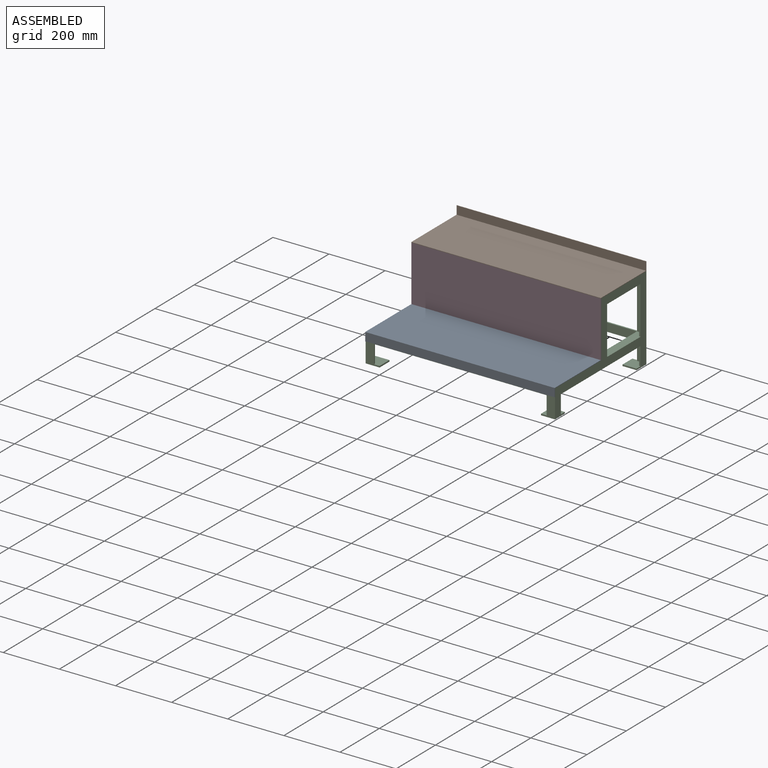
[diagram: assembled view]
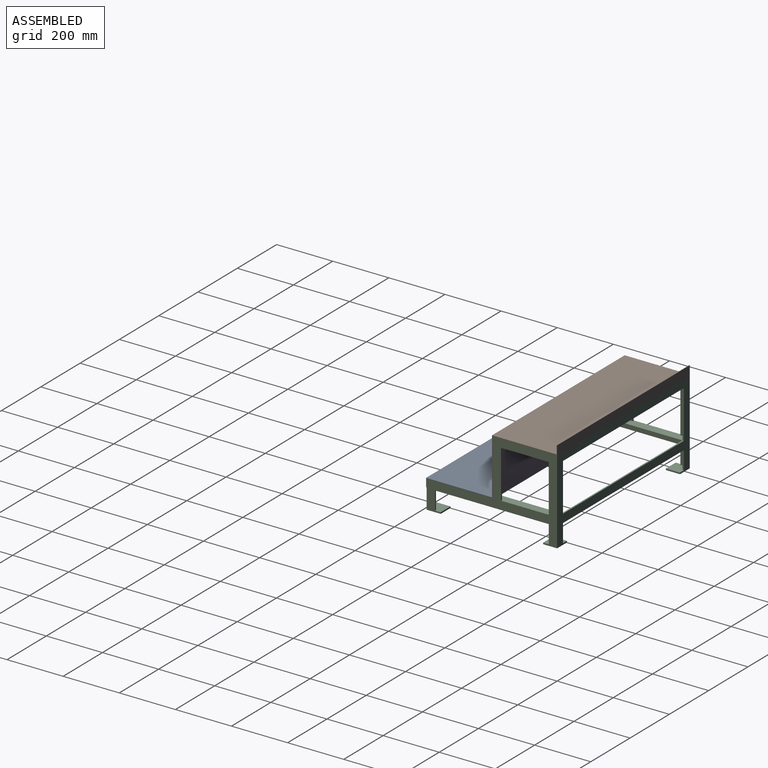
[diagram: assembled view, second angle]
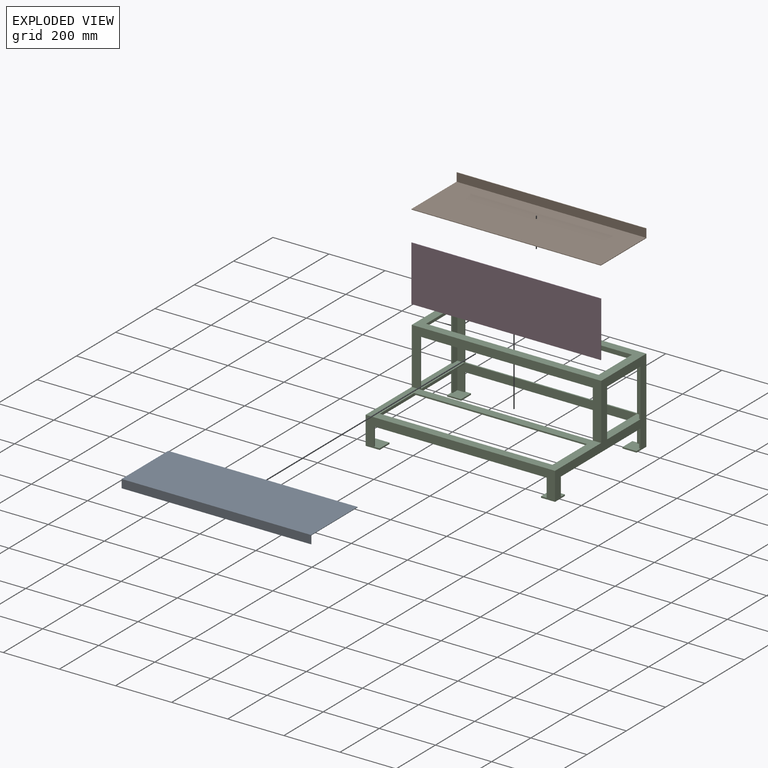
[diagram: exploded view]
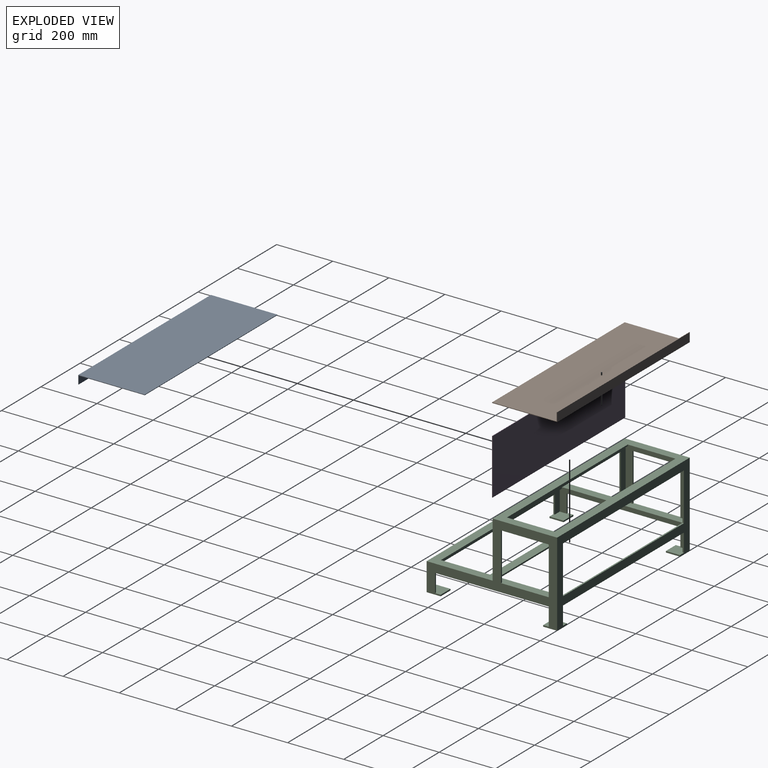
[diagram: exploded view, second angle]
ASSEMBLY  parts=4 mates=9
PART A: 8 faces, bbox 675x30x237 mm
  f0: plane 675x235mm, normal (0,1,0), area 158625mm2, adj f1,f2,f4,f6
  f1: plane 675x2mm, normal (0,0,1), area 1350mm2, adj f0,f2,f4,f5
  f2: plane 237x30mm, normal (-1,0,0), area 530mm2, adj f0,f1,f3,f5,f6,f7
  f3: plane 675x30mm, normal (0,0,-1), area 20250mm2, adj f2,f4,f5,f7
  f4: plane 237x30mm, normal (1,0,0), area 530mm2, adj f0,f1,f3,f5,f6,f7
  f5: plane 675x237mm, normal (0,-1,0), area 159975mm2, adj f1,f2,f3,f4
  f6: plane 675x28mm, normal (0,0,1), area 18900mm2, adj f0,f2,f4,f7
  f7: plane 675x2mm, normal (0,1,0), area 1350mm2, adj f2,f3,f4,f6
PART B: 8 faces, bbox 675x232x32 mm
  f0: plane 675x32mm, normal (0,1,0), area 21600mm2, adj f1,f3,f5,f7
  f1: plane 232x32mm, normal (-1,0,0), area 524mm2, adj f0,f2,f4,f5,f6,f7
  f2: plane 675x2mm, normal (0,-1,0), area 1350mm2, adj f1,f3,f4,f5
  f3: plane 232x32mm, normal (1,0,0), area 524mm2, adj f0,f2,f4,f5,f6,f7
  f4: plane 675x230mm, normal (0,0,1), area 155250mm2, adj f1,f2,f3,f6
  f5: plane 675x232mm, normal (0,0,-1), area 156600mm2, adj f0,f1,f2,f3
  f6: plane 675x30mm, normal (0,-1,0), area 20250mm2, adj f1,f3,f4,f7
  f7: plane 675x2mm, normal (0,0,1), area 1350mm2, adj f0,f1,f3,f6
PART C: 69 faces, bbox 675x465x300 mm
  f0: plane 225x175mm, normal (-1,0,0), area 1975mm2, adj f9,f15,f39,f40,f42,f43,f48
  f1: plane 65x5mm, normal (-1,0,0), area 325mm2, adj f32,f39,f52,f65
  f2: plane 65x5mm, normal (1,0,0), area 325mm2, adj f32,f39,f52,f64
  f3: plane 225x175mm, normal (1,0,0), area 1975mm2, adj f10,f15,f39,f40,f42,f43,f48
  f4: plane 170x5mm, normal (0,1,0), area 850mm2, adj f9,f17,f27,f50
  f5: plane 665x220mm, normal (0,0,-1), area 41750mm2, adj f7,f17,f18,f38,f43,f45,f46,f47
  f6: plane 170x5mm, normal (0,-1,0), area 850mm2, adj f9,f17,f27,f50
  f7: plane 615x5mm, normal (0,-1,0), area 3075mm2, adj f5,f36,f45,f47
  f8: plane 170x5mm, normal (0,-1,0), area 850mm2, adj f10,f18,f28,f49
  f9: plane 220x30mm, normal (0,0,1), area 6350mm2, adj f0,f4,f6,f17,f27,f38,f43
  f10: plane 220x30mm, normal (0,0,1), area 6350mm2, adj f3,f8,f18,f28,f38,f43,f44
  f11: plane 170x5mm, normal (-1,0,0), area 850mm2, adj f32,f37,f38,f51
  f12: plane 170x5mm, normal (1,0,0), area 850mm2, adj f32,f37,f38,f51
  f13: plane 675x235mm, normal (0,0,1), area 51000mm2, adj f22,f27,f28,f29,f31,f33,f40,f41
  f14: plane 455x90mm, normal (-1,0,0), area 14625mm2, adj f15,f19,f23,f30,f35,f39,f53,f65
  f15: plane 665x455mm, normal (0,0,-1), area 56575mm2, adj f0,f3,f14,f16,f22,f23,f31,f33
  f16: plane 455x90mm, normal (1,0,0), area 14625mm2, adj f15,f20,f21,f23,f34,f39,f57,f64
  f17: plane 220x195mm, normal (-1,0,0), area 14000mm2, adj f4,f5,f6,f9,f38,f43,f50
  f18: plane 220x195mm, normal (1,0,0), area 14000mm2, adj f5,f8,f10,f38,f43,f44,f49
  f19: plane 405x5mm, normal (0,0,-1), area 2025mm2, adj f14,f27,f30,f35
  f20: plane 405x5mm, normal (0,0,-1), area 2025mm2, adj f16,f21,f28,f34
  f21: plane 65x5mm, normal (0,1,0), area 325mm2, adj f16,f20,f28,f57
  f22: plane 615x5mm, normal (0,1,0), area 3075mm2, adj f13,f15,f31,f33
  f23: plane 665x90mm, normal (0,1,0), area 19875mm2, adj f14,f15,f16,f24,f25,f26,f53,f57
  f24: plane 65x5mm, normal (1,0,0), area 325mm2, adj f23,f25,f29,f57
  f25: plane 615x5mm, normal (0,0,-1), area 3075mm2, adj f23,f24,f26,f29
  f26: plane 65x5mm, normal (-1,0,0), area 325mm2, adj f23,f25,f29,f53
  f27: plane 465x300mm, normal (1,0,0), area 35450mm2, adj f4,f6,f9,f13,f19,f29,f30,f32
  f28: plane 465x300mm, normal (-1,0,0), area 35450mm2, adj f8,f10,f13,f20,f21,f29,f32,f34
  f29: plane 675x100mm, normal (0,-1,0), area 24650mm2, adj f13,f24,f25,f26,f27,f28,f53,f54
  f30: plane 65x5mm, normal (0,1,0), area 325mm2, adj f14,f19,f27,f53
  f31: plane 175x5mm, normal (-1,0,0), area 875mm2, adj f13,f15,f22,f41
  f32: plane 675x300mm, normal (0,1,0), area 55100mm2, adj f1,f2,f11,f12,f27,f28,f36,f37
  f33: plane 175x5mm, normal (1,0,0), area 875mm2, adj f13,f15,f22,f41
  f34: plane 65x5mm, normal (0,-1,0), area 325mm2, adj f16,f20,f28,f64
  f35: plane 65x5mm, normal (0,-1,0), area 325mm2, adj f14,f19,f27,f65
  f36: plane 675x230mm, normal (0,0,1), area 50700mm2, adj f7,f27,f28,f32,f42,f45,f46,f47
  f37: plane 615x5mm, normal (0,0,-1), area 3075mm2, adj f11,f12,f32,f38
  f38: plane 665x195mm, normal (0,-1,0), area 25125mm2, adj f5,f9,f10,f11,f12,f17,f18,f37
  f39: plane 665x95mm, normal (0,-1,0), area 22950mm2, adj f0,f1,f2,f3,f14,f15,f16,f51
  f40: plane 615x5mm, normal (0,1,0), area 3075mm2, adj f0,f3,f13,f15
  f41: plane 615x5mm, normal (0,-1,0), area 3075mm2, adj f13,f15,f31,f33
  f42: plane 675x200mm, normal (0,-1,0), area 30450mm2, adj f0,f3,f13,f27,f28,f36,f48
  f43: plane 665x195mm, normal (0,1,0), area 25125mm2, adj f0,f3,f5,f9,f10,f17,f18,f48
  f44: plane 170x5mm, normal (0,1,0), area 850mm2, adj f10,f18,f28,f49
  f45: plane 170x5mm, normal (-1,0,0), area 850mm2, adj f5,f7,f36,f46
  f46: plane 615x5mm, normal (0,1,0), area 3075mm2, adj f5,f36,f45,f47
  f47: plane 170x5mm, normal (1,0,0), area 850mm2, adj f5,f7,f36,f46
  f48: plane 615x5mm, normal (0,0,-1), area 3075mm2, adj f0,f3,f42,f43
  f49: plane 170x5mm, normal (0,0,-1), area 850mm2, adj f8,f18,f28,f44
  f50: plane 170x5mm, normal (0,0,-1), area 850mm2, adj f4,f6,f17,f27
  f51: plane 615x5mm, normal (0,0,1), area 3075mm2, adj f11,f12,f32,f39
  f52: plane 615x5mm, normal (0,0,-1), area 3075mm2, adj f1,f2,f32,f39
  f53: plane 50x50mm, normal (0,0,1), area 2225mm2, adj f14,f23,f26,f27,f29,f30,f54,f55
  f54: plane 50x5mm, normal (-1,0,0), area 250mm2, adj f29,f53,f55,f56
  f55: plane 50x5mm, normal (0,1,0), area 250mm2, adj f27,f53,f54,f56
  f56: plane 50x50mm, normal (0,0,-1), area 2500mm2, adj f27,f29,f54,f55
  f57: plane 50x50mm, normal (0,0,1), area 2225mm2, adj f16,f21,f23,f24,f28,f29,f58,f59
  f58: plane 50x5mm, normal (0,1,0), area 250mm2, adj f28,f57,f59,f60
  f59: plane 50x5mm, normal (1,0,0), area 250mm2, adj f29,f57,f58,f60
  f60: plane 50x50mm, normal (0,0,-1), area 2500mm2, adj f28,f29,f58,f59
  f61: plane 50x5mm, normal (1,0,0), area 250mm2, adj f32,f62,f63,f64
  f62: plane 50x5mm, normal (0,-1,0), area 250mm2, adj f28,f61,f63,f64
  f63: plane 50x50mm, normal (0,0,-1), area 2500mm2, adj f28,f32,f61,f62
  f64: plane 50x50mm, normal (0,0,1), area 2225mm2, adj f2,f16,f28,f32,f34,f39,f61,f62
  f65: plane 50x50mm, normal (0,0,1), area 2225mm2, adj f1,f14,f27,f32,f35,f39,f66,f67
  f66: plane 50x5mm, normal (0,-1,0), area 250mm2, adj f27,f65,f67,f68
  f67: plane 50x5mm, normal (-1,0,0), area 250mm2, adj f32,f65,f66,f68
  f68: plane 50x50mm, normal (0,0,-1), area 2500mm2, adj f27,f32,f66,f67
PART D: 6 faces, bbox 675x2x198 mm
  f0: plane 675x2mm, normal (0,0,1), area 1350mm2, adj f1,f3,f4,f5
  f1: plane 198x2mm, normal (-1,0,0), area 396mm2, adj f0,f2,f4,f5
  f2: plane 675x2mm, normal (0,0,-1), area 1350mm2, adj f1,f3,f4,f5
  f3: plane 198x2mm, normal (1,0,0), area 396mm2, adj f0,f2,f4,f5
  f4: plane 675x198mm, normal (0,-1,0), area 133650mm2, adj f0,f1,f2,f3
  f5: plane 675x198mm, normal (0,1,0), area 133650mm2, adj f0,f1,f2,f3
PLACE A rot(axis=(-1,0,0),90deg) t=(1.52,-130.94,-47.5)mm
PLACE B t=(1.52,101.56,152.5)mm
PLACE C t=(1.52,-242.44,-95)mm fixed
PLACE D t=(1.52,-12.44,53.5)mm
MATE planar B.f5 <-> C.f36  axis (0,0,-1) through (1.52,101.56,152.5)mm
MATE planar D.f0 <-> C.f36  axis (0,0,1) through (1.52,-13.44,152.5)mm
MATE planar B.f2 <-> D.f4  axis (0,-1,0) through (1.52,-14.44,153.5)mm
MATE planar A.f6 <-> C.f29  axis (0,1,0) through (1.52,-247.44,-61.5)mm
MATE planar D.f3 <-> C.f27  axis (1,0,0) through (339.02,-13.44,53.5)mm
MATE planar A.f0 <-> C.f13  axis (0,0,-1) through (1.52,-129.94,-47.5)mm
MATE planar A.f2 <-> C.f28  axis (-1,0,0) through (-335.98,-143.35,-48.08)mm
MATE planar D.f5 <-> C.f42  axis (0,1,0) through (1.52,-12.44,53.5)mm
MATE planar B.f3 <-> C.f27  axis (1,0,0) through (339.02,114.73,155.33)mm
